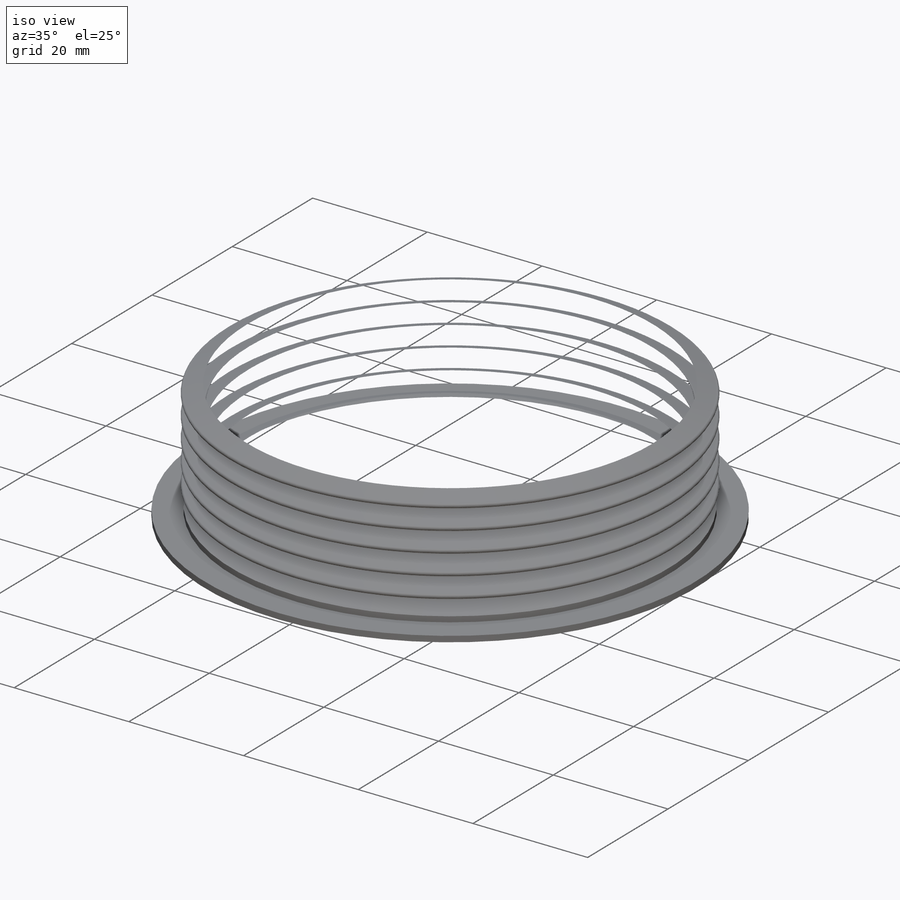
[diagram: iso view]
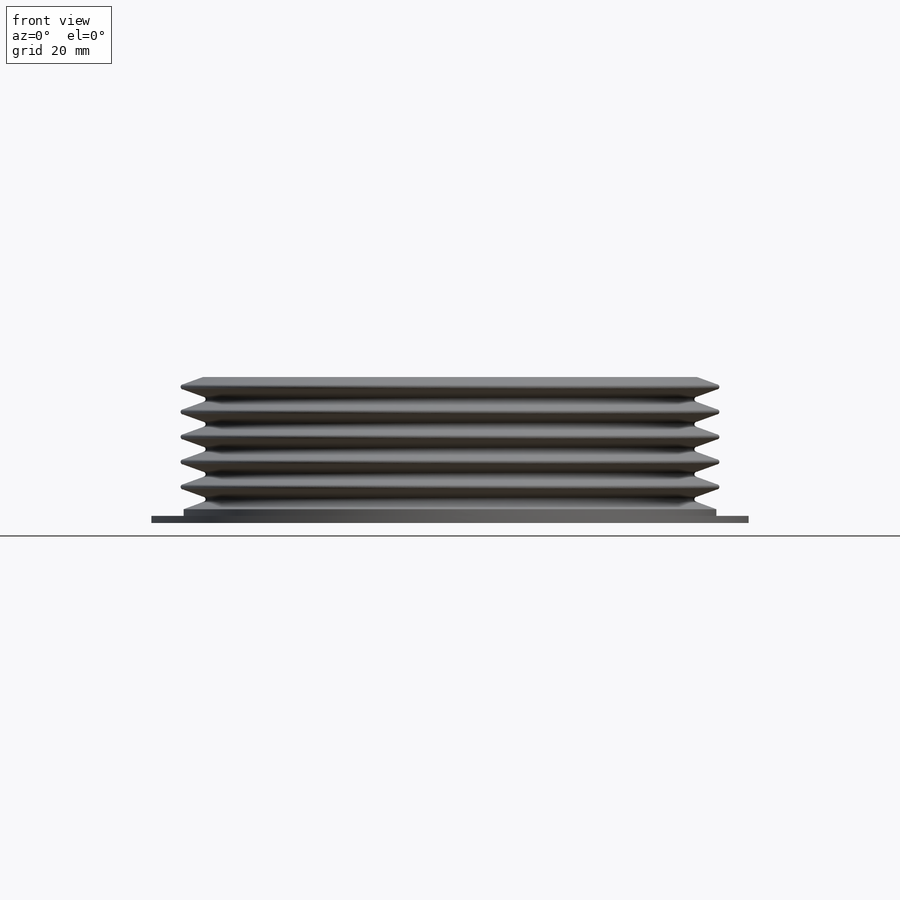
[diagram: front view]
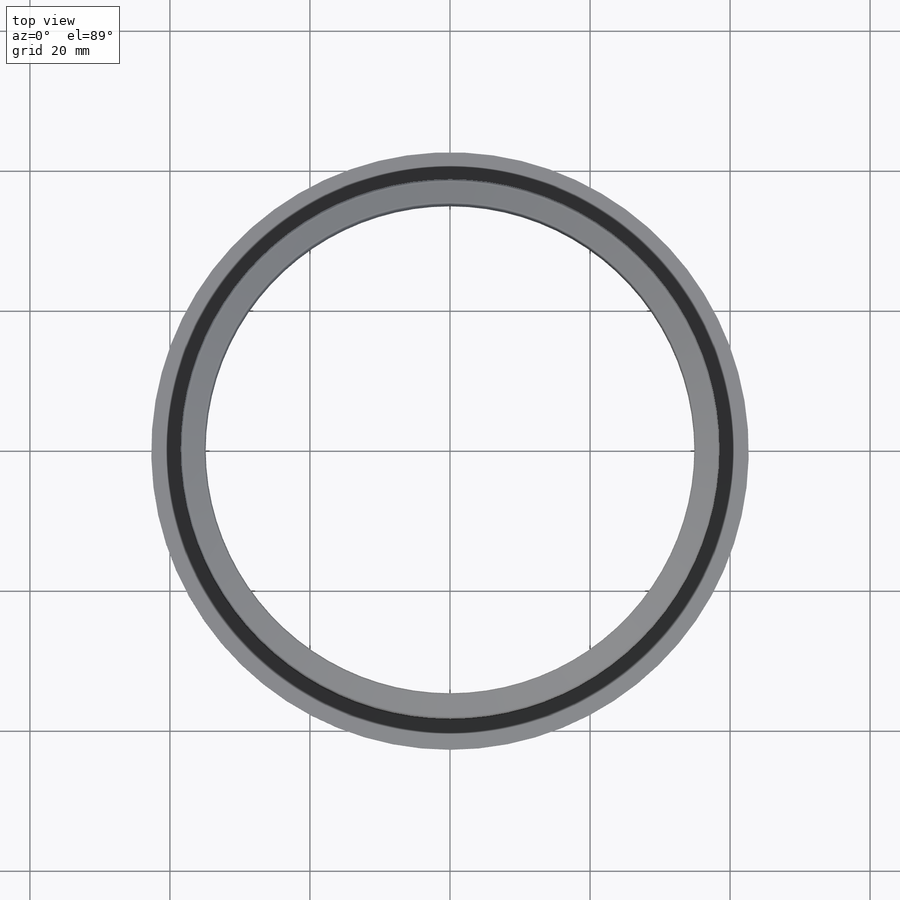
[diagram: top view]
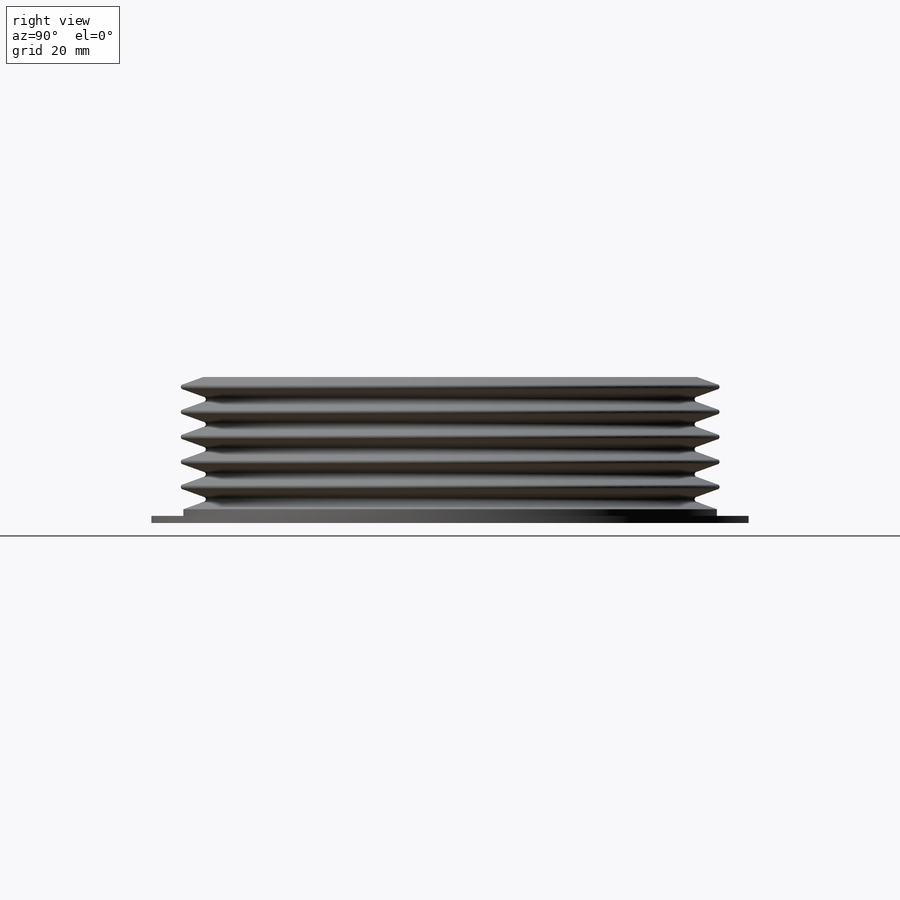
[diagram: right view]
SOLIDWORKS PART (.sldprt)
format: sldprt  version: not decoded by parser v0  size: 712,192 bytes
history: native  units: mm
features: sketch x6, cut_extrude x2, material x1, revolve x1, hole x1, pattern_circular x1 (+11 scaffold rows collapsed)
feature tree (23):
  scaffold x11  (default folders/planes/origin — collapsed)
  material  "6061-T6 (SS)"
  sketch  "Sketch1"  dims[c1.D9=~0.661848mm c1.D5=0.381mm c1.D1=~2.312458mm c2.D1=100.0deg c2.D2=~1.909967mm c3.D2=100.0deg c3.D3=1.016mm c3.D4=1.016mm c3.D5=1.27mm c3.D6=31.75mm c3.D7=38.1mm c3.D8=3.175mm c3.D1=1.27mm c4.D1=40.0deg c4.D2=1016.0mm c5.D1=~15.226794mm c6.D1=20.0deg c6.D2=1.27mm c7.D2=50.0deg c8.D2=~15.226794mm c9.D2=20.0deg c9.D3=~3.57124mm c9.D4=4.572mm c9.D8=1.016mm c9.D9=38.1mm c10.D4=38.1mm c10.D7=4.572mm c10.D9=0.9525mm c10.D10=0.9525mm c10.D6=~29.75864mm]
  revolve  "Revolve1"  Angle=360deg
  sketch  "Sketch2"  dims[D1=37.084mm]
  cut_extrude  "Cut-Extrude1"  Depth=10.16mm
  sketch  "Sketch6"  dims[D1=6.35mm]
  cut_extrude  "Cut-Extrude2"  Depth=30.48mm
  sketch  "Sketch8"  dims[D1=13.4874mm]
  hole  "5/16 Clearance Hole1"  Diameter=8.2042mm Depth=31.74492mm
  sketch  "Sketch10"
  sketch  "Sketch11"  dims[hole-wizard template sketch: 59 standard entries collapsed; hole parameters kept: c18.Thru Hole Dia.=8.2042mm c18.Thru Hole Depth=~31.74492mm]
  pattern_circular  "CirPattern1"  Count=4 Angle=360deg
decode coverage: 10 of 11 modeling features carry decoded parameters
note: ~ marks probable driven/reference dimensions
note: suppression state not decoded; provenance and decode notes live in map.json
